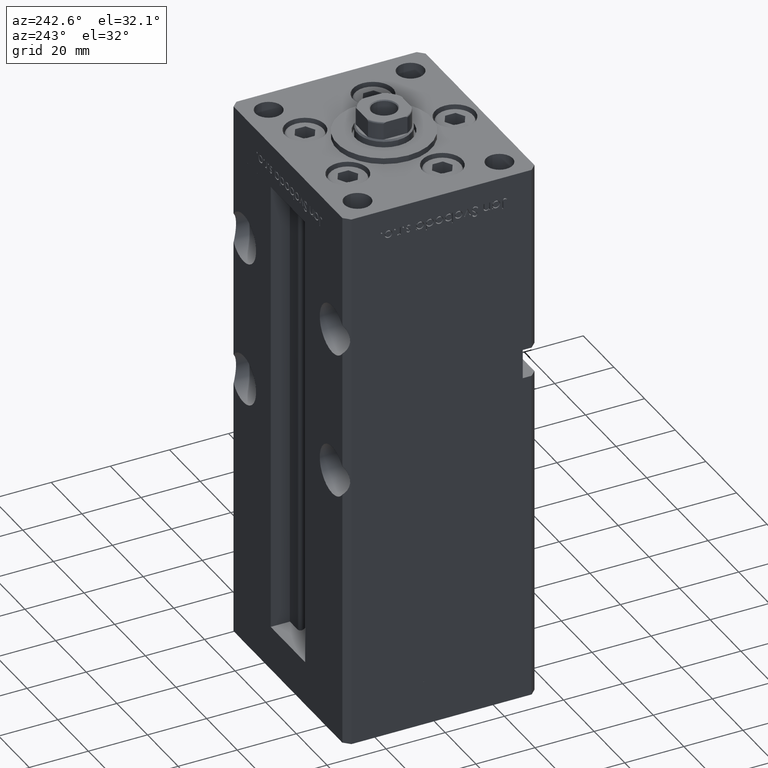
[diagram: clean part render]
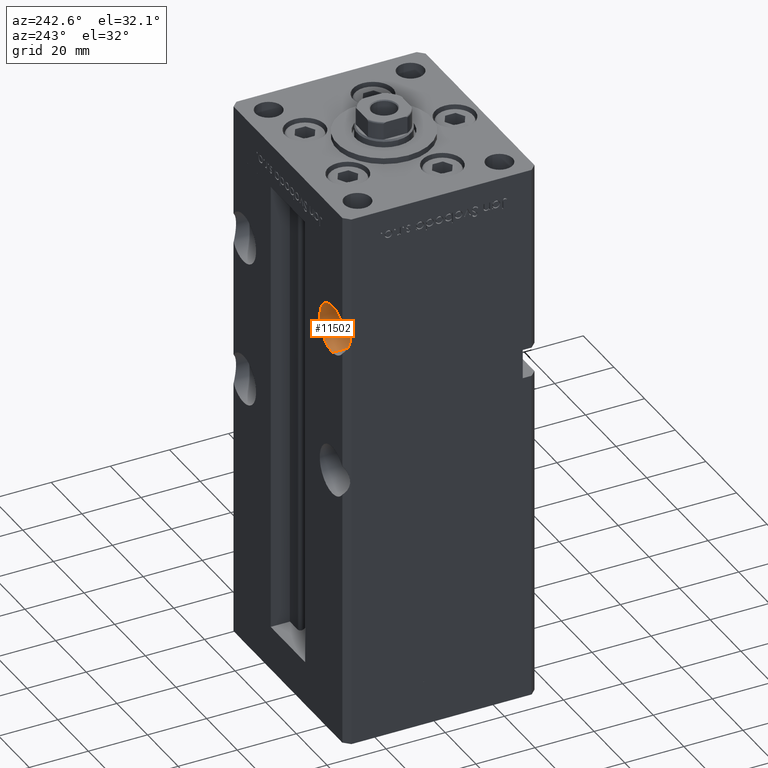
[diagram: same view with one face highlighted and labeled with its STEP entity id]
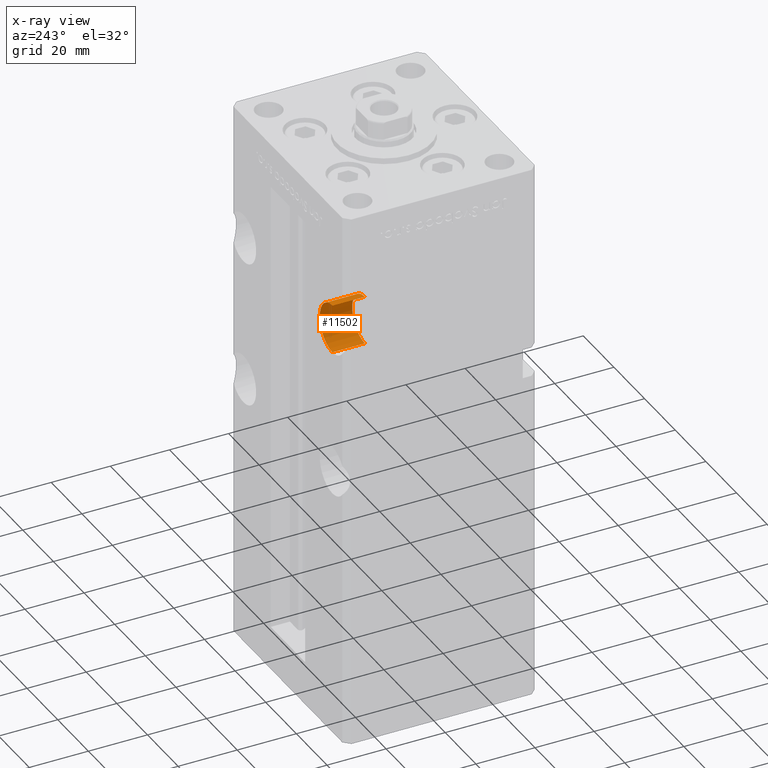
[diagram: x-ray of the same camera — body ghosted, the highlighted face saturated]
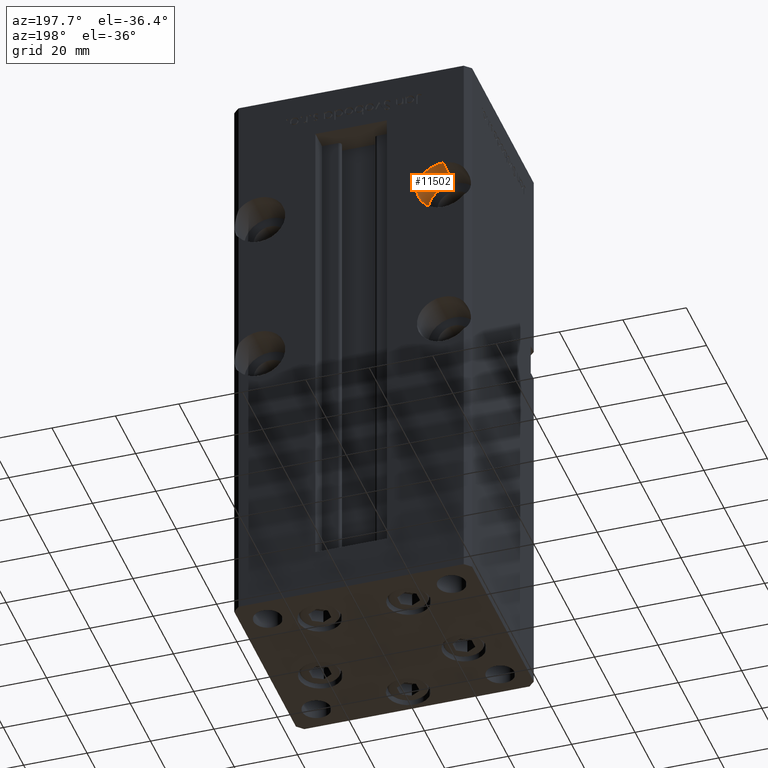
[diagram: same view with one face highlighted and labeled with its STEP entity id]
A machine part, auxiliary view. The second image highlights one B-rep face of the part: STEP entity #11502.
The next image is the same camera in x-ray: the body ghosted, the highlighted face saturated — about 0% of this face is hidden behind the body in this view.
A second angle (auxiliary view) of the same face is appended — the face is thin or edge-on in the first view.
In plain terms, the highlighted cylindrical surface (edge-blend (fillet) strip) has radius 8.25 mm, axis along (0, 1, 0).
Its self-contained STEP definition (entity closure, byte-faithful):
#720 = EDGE_CURVE ( 'NONE', #42382, #5027, #29713, .T. ) ;
#1545 = CYLINDRICAL_SURFACE ( 'NONE', #26404, 8.250000000000007105 ) ;
#2636 = DIRECTION ( 'NONE',  ( 0.000000000000000000, 0.000000000000000000, -1.000000000000000000 ) ) ;
#2708 = EDGE_CURVE ( 'NONE', #41052, #11600, #45212, .T. ) ;
#3175 = ORIENTED_EDGE ( 'NONE', *, *, #720, .F. ) ;
#3744 = DIRECTION ( 'NONE',  ( 0.000000000000000000, 0.000000000000000000, -1.000000000000000000 ) ) ;
#4553 = CARTESIAN_POINT ( 'NONE',  ( -28.99999999999999645, 21.50000000000000000, 128.0000000000000000 ) ) ;
#5027 = VERTEX_POINT ( 'NONE', #31943 ) ;
#7363 = EDGE_CURVE ( 'NONE', #42382, #41052, #30411, .T. ) ;
#9144 = CARTESIAN_POINT ( 'NONE',  ( -28.99999999999999645, 32.50000000000000000, 136.2500000000000000 ) ) ;
#9926 = DIRECTION ( 'NONE',  ( -0.000000000000000000, 1.000000000000000000, -0.000000000000000000 ) ) ;
#11502 = ADVANCED_FACE ( 'NONE', ( #46729 ), #1545, .F. ) ;
#11600 = VERTEX_POINT ( 'NONE', #15430 ) ;
#12702 = DIRECTION ( 'NONE',  ( -0.000000000000000000, 1.000000000000000000, -0.000000000000000000 ) ) ;
#13117 = CARTESIAN_POINT ( 'NONE',  ( -28.99999999999999645, 21.50000000000000000, 128.0000000000000000 ) ) ;
#14677 = CARTESIAN_POINT ( 'NONE',  ( -28.99999999999999645, 21.50000000000000000, 136.2500000000000000 ) ) ;
#15430 = CARTESIAN_POINT ( 'NONE',  ( -28.99999999999999645, 32.50000000000000000, 119.7500000000000000 ) ) ;
#20157 = CARTESIAN_POINT ( 'NONE',  ( -28.99999999999999645, 32.50000000000000000, 128.0000000000000000 ) ) ;
#20977 = DIRECTION ( 'NONE',  ( 0.000000000000000000, 1.000000000000000000, -0.000000000000000000 ) ) ;
#21047 = EDGE_CURVE ( 'NONE', #5027, #11600, #21570, .T. ) ;
#21130 = AXIS2_PLACEMENT_3D ( 'NONE', #20157, #44643, #3744 ) ;
#21570 = LINE ( 'NONE', #34214, #42029 ) ;
#22702 = ORIENTED_EDGE ( 'NONE', *, *, #7363, .T. ) ;
#23698 = AXIS2_PLACEMENT_3D ( 'NONE', #4553, #20977, #2636 ) ;
#26404 = AXIS2_PLACEMENT_3D ( 'NONE', #13117, #41391, #30084 ) ;
#28166 = ORIENTED_EDGE ( 'NONE', *, *, #21047, .F. ) ;
#29713 = CIRCLE ( 'NONE', #23698, 8.250000000000007105 ) ;
#30084 = DIRECTION ( 'NONE',  ( 0.000000000000000000, 0.000000000000000000, 1.000000000000000000 ) ) ;
#30411 = LINE ( 'NONE', #34963, #33159 ) ;
#31943 = CARTESIAN_POINT ( 'NONE',  ( -28.99999999999999645, 21.50000000000000000, 119.7500000000000000 ) ) ;
#33159 = VECTOR ( 'NONE', #9926, 1000.000000000000000 ) ;
#33165 = ORIENTED_EDGE ( 'NONE', *, *, #2708, .T. ) ;
#34214 = CARTESIAN_POINT ( 'NONE',  ( -28.99999999999999645, 21.50000000000000000, 119.7500000000000000 ) ) ;
#34963 = CARTESIAN_POINT ( 'NONE',  ( -28.99999999999999645, 21.50000000000000000, 136.2500000000000000 ) ) ;
#40344 = EDGE_LOOP ( 'NONE', ( #28166, #3175, #22702, #33165 ) ) ;
#41052 = VERTEX_POINT ( 'NONE', #9144 ) ;
#41391 = DIRECTION ( 'NONE',  ( -0.000000000000000000, 1.000000000000000000, -0.000000000000000000 ) ) ;
#42029 = VECTOR ( 'NONE', #12702, 1000.000000000000000 ) ;
#42382 = VERTEX_POINT ( 'NONE', #14677 ) ;
#44643 = DIRECTION ( 'NONE',  ( 0.000000000000000000, 1.000000000000000000, -0.000000000000000000 ) ) ;
#45212 = CIRCLE ( 'NONE', #21130, 8.250000000000007105 ) ;
#46729 = FACE_OUTER_BOUND ( 'NONE', #40344, .T. ) ;